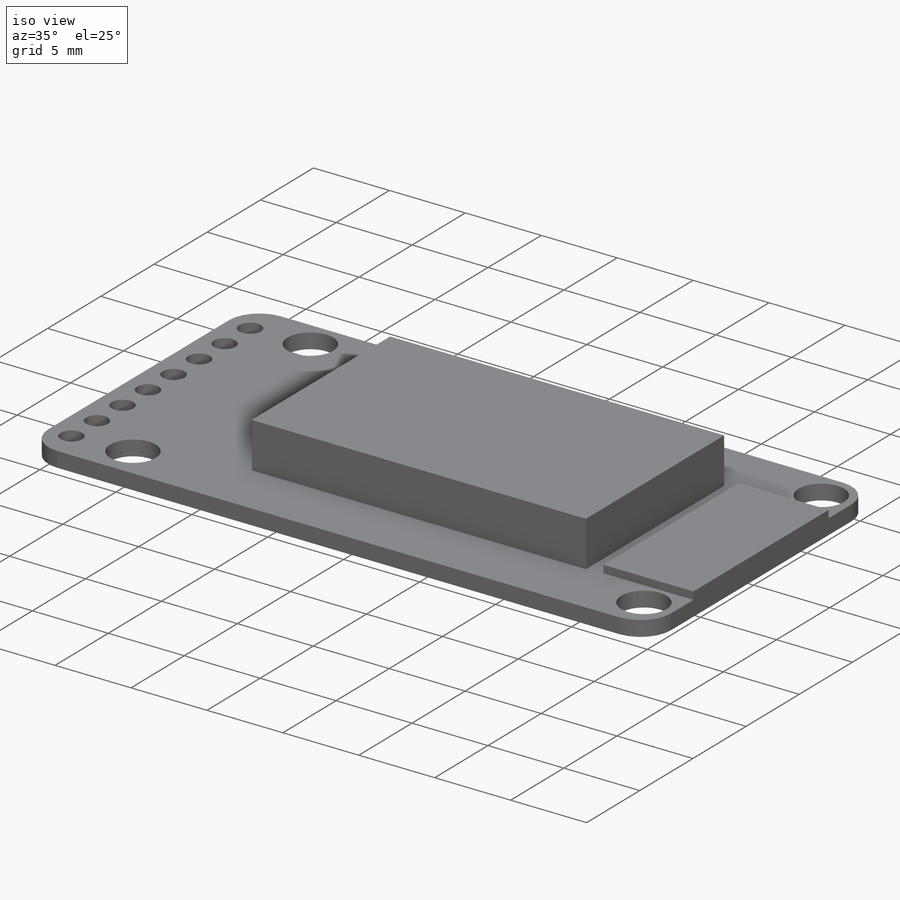
[diagram: iso view]
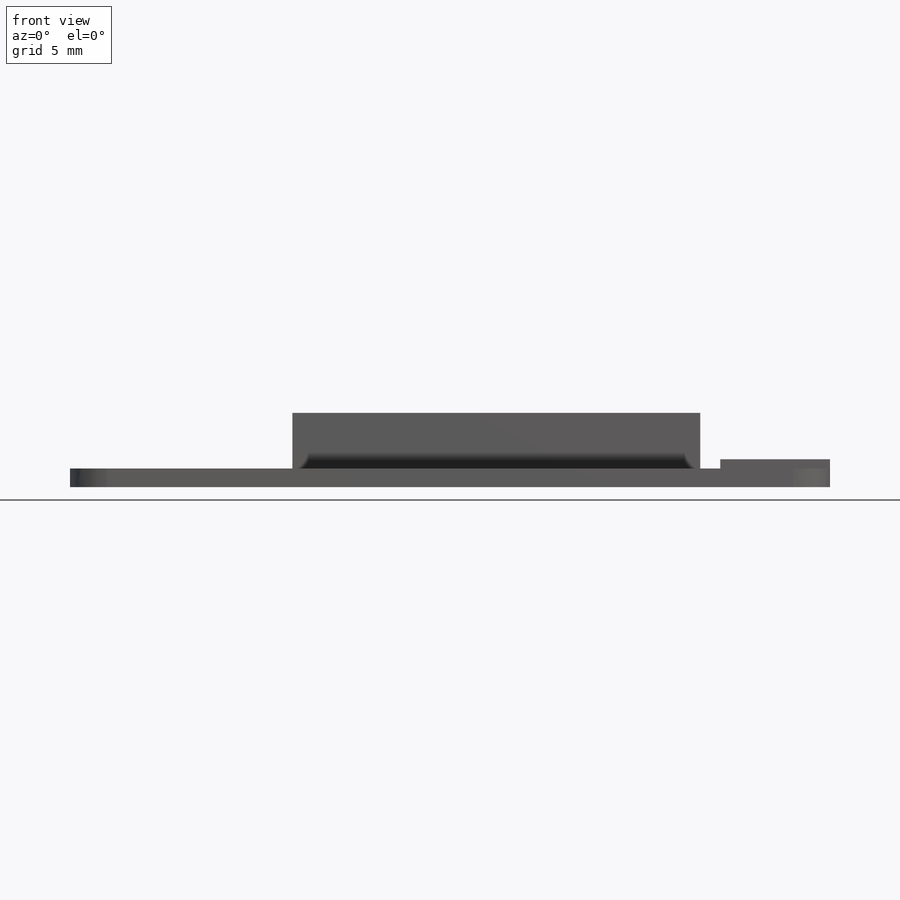
[diagram: front view]
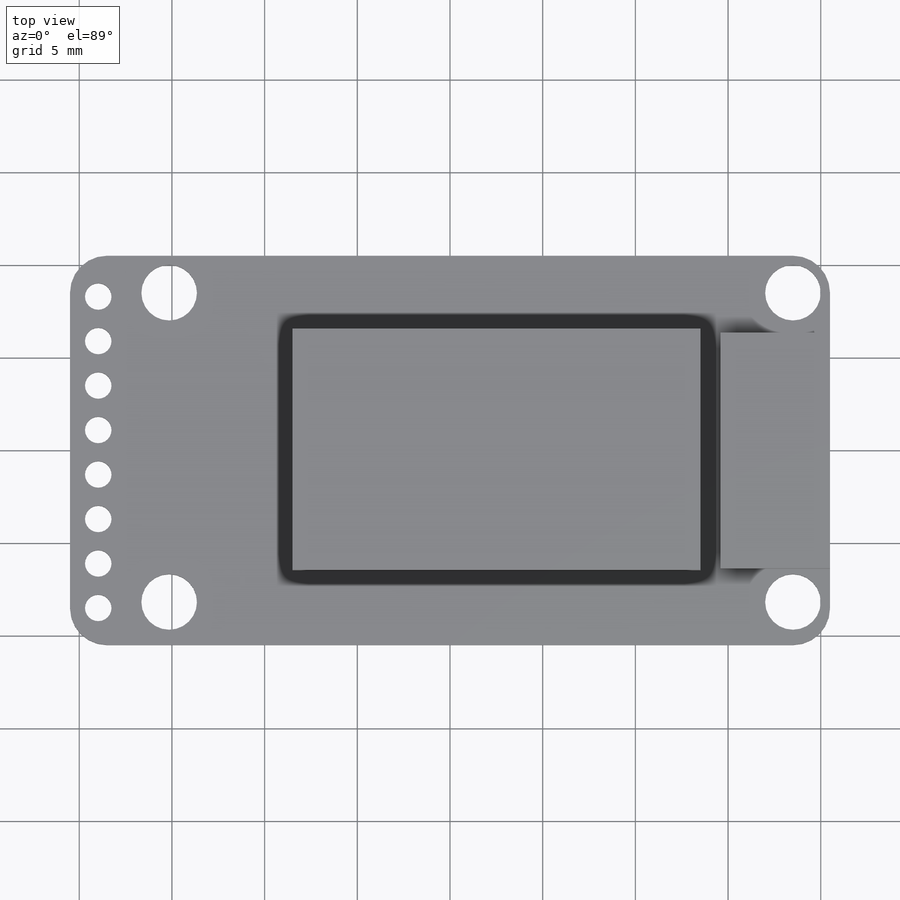
[diagram: top view]
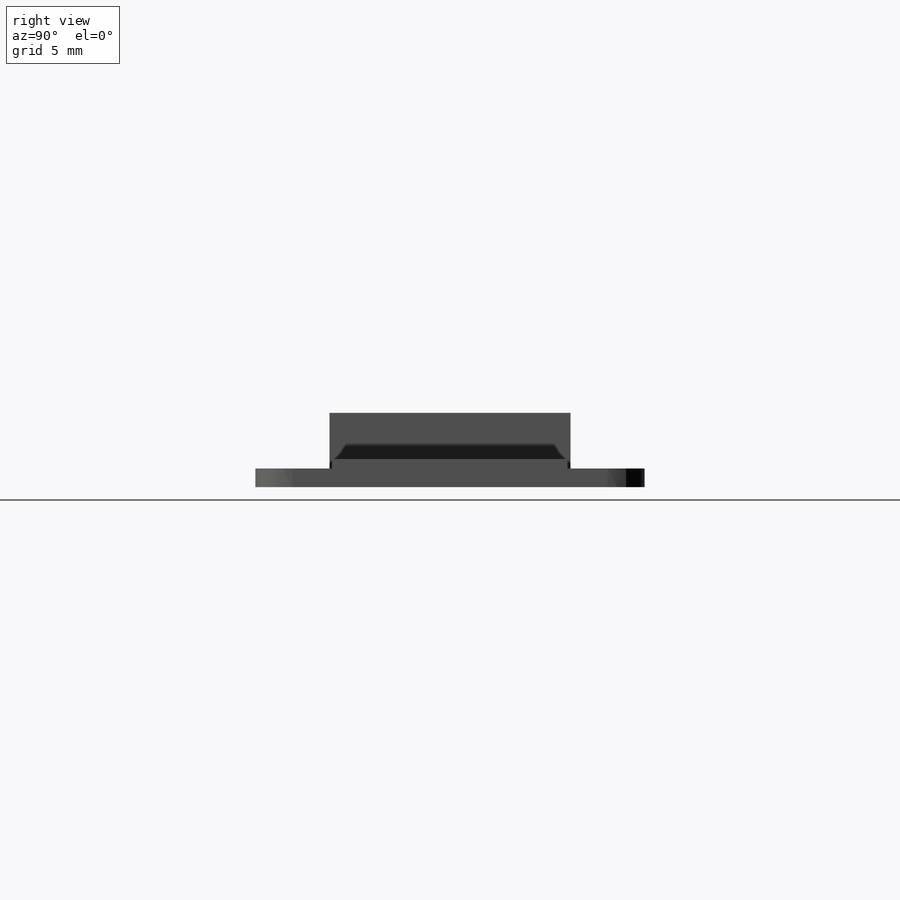
[diagram: right view]
SOLIDWORKS PART (.sldprt)
format: sldprt  version: not decoded by parser v0  size: 268,800 bytes
history: native  units: mm
features: sketch x7, cut_extrude x5, plane x3, extrude x2, material x1, fillet x1, pattern_linear x1 (+9 scaffold rows collapsed)
feature tree (29):
  scaffold x9  (default folders/planes/origin — collapsed)
  material  "Material <sin especificar>"
  plane  "Alzado"
  plane  "Planta"
  plane  "Vista lateral"
  sketch  "Croquis1"  dims[D1=41.0mm D2=21.0mm]
  extrude  "Saliente-Extruir1"  Depth=4mm
  sketch  "Croquis2"  dims[D1=12.0mm]
  cut_extrude  "Cortar-Extruir1"  Depth=3mm
  sketch  "Croquis3"  dims[D1=7.0mm]
  cut_extrude  "Cortar-Extruir2"  Depth=3mm
  sketch  "Croquis4"  dims[D1=4.0mm D2=4.0mm]
  cut_extrude  "Cortar-Extruir3"  Depth=3mm
  fillet  "Redondeo1"  Radius=2mm
  sketch  "Croquis5"
  cut_extrude  "Cortar-Extruir5"  Depth=3mm
  pattern_linear  "MatrizL2"  Count1=8 Count2=1 Spacing1=2.4mm Spacing2=50mm
  sketch  "Croquis6"  dims[D1=~1.350042mm]
  cut_extrude  "Cortar-Extruir6"  Depth=3mm
  sketch  "Croquis7"
  extrude  "Saliente-Extruir2"  Depth=0.5mm
decode coverage: 14 of 16 modeling features carry decoded parameters
note: ~ marks probable driven/reference dimensions
note: suppression state not decoded; provenance and decode notes live in map.json
